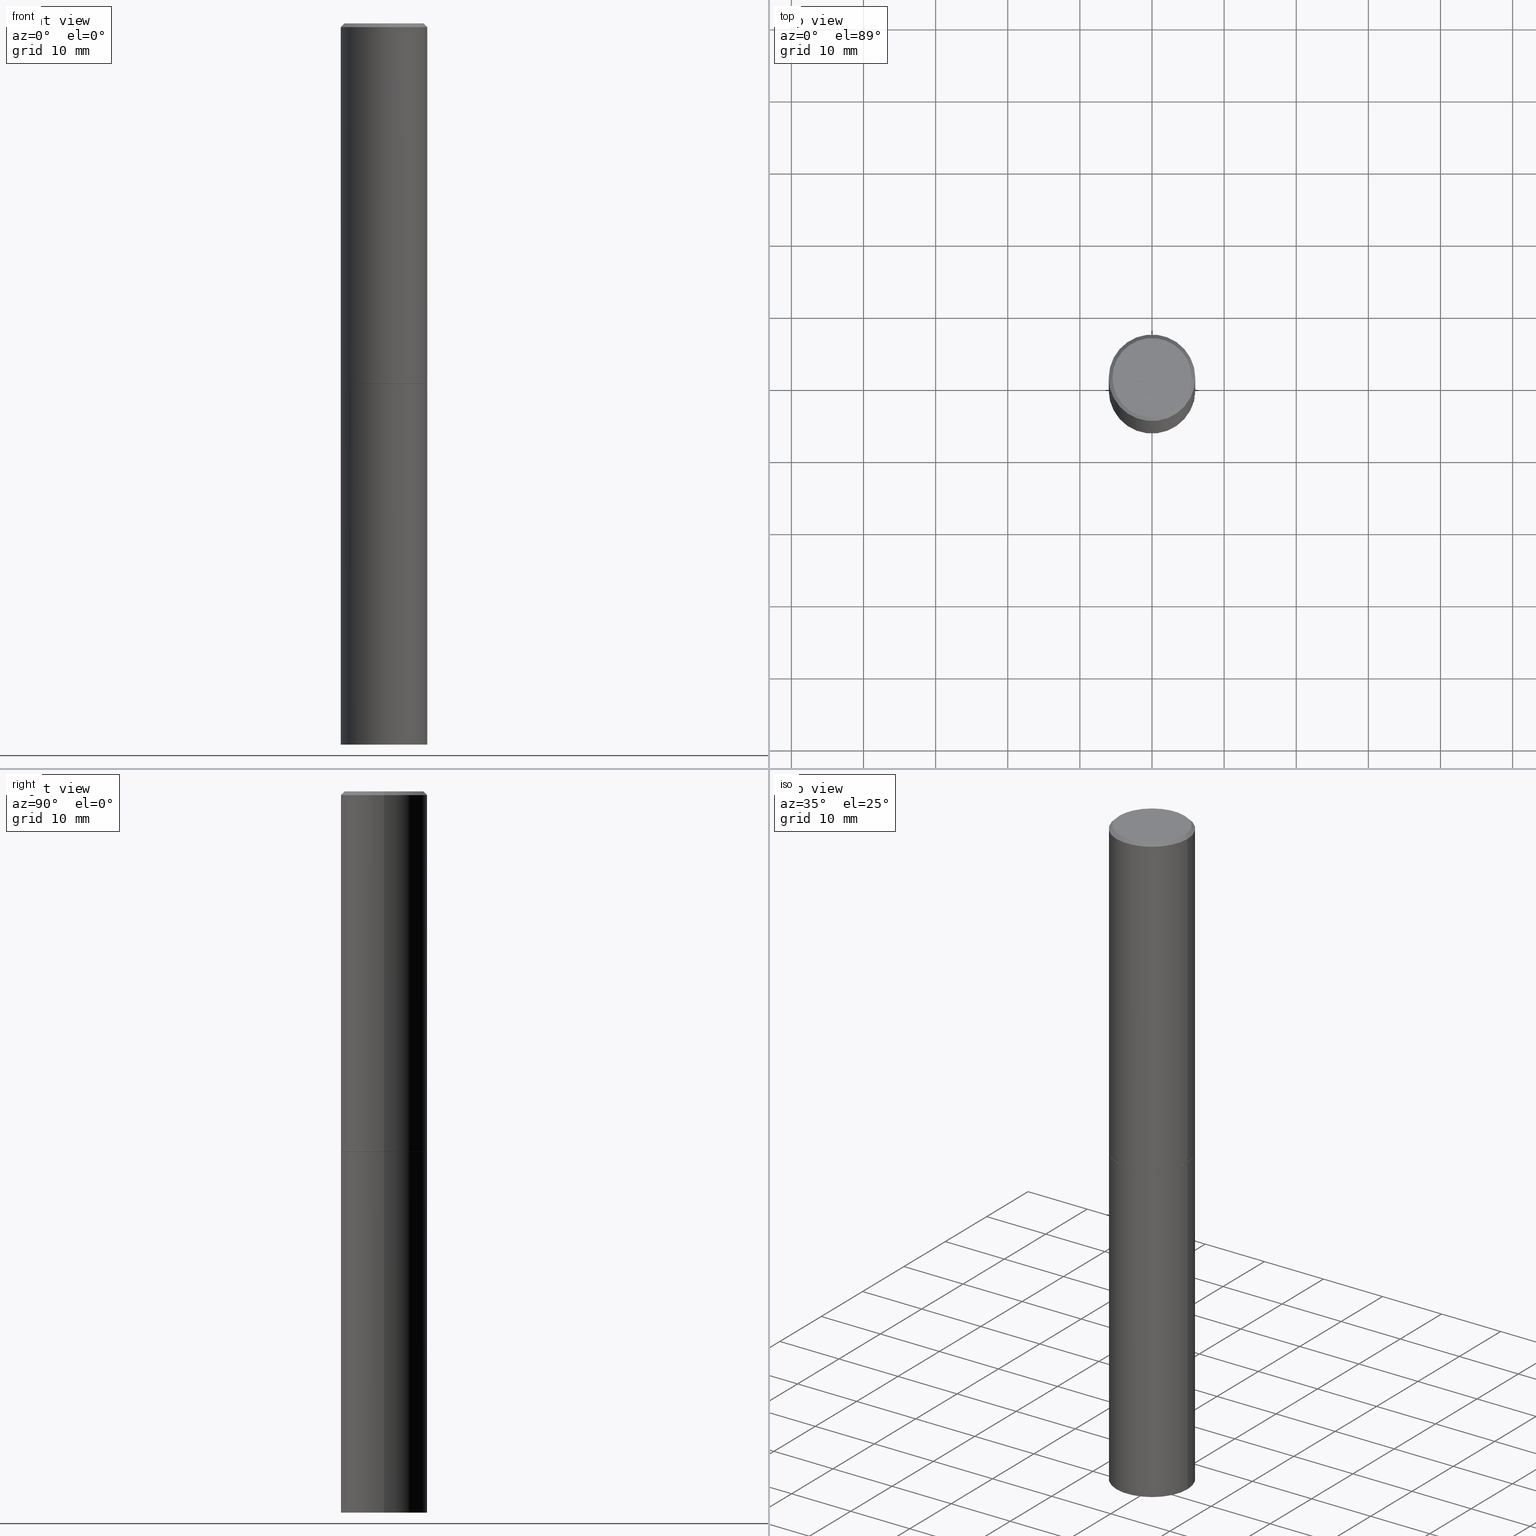
[diagram: canonical four-view strip — front | top / right | iso, engineering-drawing reading convention]
A machine part, canonical four-view strip (front | top / right | iso — engineering-drawing reading convention). The complete STEP part file that produces these views, byte-faithful:
ISO-10303-21;
HEADER;
FILE_DESCRIPTION (( 'STEP AP203' ),
    '1' );
FILE_NAME ('42617.STEP',
    '2024-02-28T03:28:32',
    ( '' ),
    ( '' ),
    'SwSTEP 2.0',
    'SolidWorks 2023',
    '' );
FILE_SCHEMA (( 'CONFIG_CONTROL_DESIGN' ));
ENDSEC;

DATA;
#1 = SHAPE_DEFINITION_REPRESENTATION ( #141, #121 ) ;
#2 = DIRECTION ( 'NONE',  ( -2.445468806185136597E-29, 3.491481338843145583E-15, 1.000000000000000000 ) ) ;
#3 = CIRCLE ( 'NONE', #58, 0.2361999999999999933 ) ;
#4 = AXIS2_PLACEMENT_3D ( 'NONE', #34, #172, #227 ) ;
#5 = DIRECTION ( 'NONE',  ( 0.7071067811865465735, -7.319954787623252890E-15, -0.7071067811865484609 ) ) ;
#6 = CARTESIAN_POINT ( 'NONE',  ( 1.509716530915769140E-15, 0.2161999999999997535, -7.527240092128371176E-16 ) ) ;
#7 = CALENDAR_DATE ( 2024, 27, 2 ) ;
#8 = CARTESIAN_POINT ( 'NONE',  ( 4.811459876169255671E-29, -6.869489534173887122E-15, -1.967499999999999805 ) ) ;
#9 = PLANE ( 'NONE',  #249 ) ;
#10 = APPROVAL_PERSON_ORGANIZATION ( #32, #354, #349 ) ;
#11 = MANIFOLD_SOLID_BREP ( 'Body-Move/Copy2[1]', #184 ) ;
#12 = ORIENTED_EDGE ( 'NONE', *, *, #353, .T. ) ;
#13 = ORIENTED_EDGE ( 'NONE', *, *, #46, .F. ) ;
#14 = CONICAL_SURFACE ( 'NONE', #92, 0.2351999999999999924, 0.7853981633974141952 ) ;
#15 = ORIENTED_EDGE ( 'NONE', *, *, #127, .F. ) ;
#16 = SECURITY_CLASSIFICATION ( '', '', #310 ) ;
#17 = EDGE_LOOP ( 'NONE', ( #169, #329 ) ) ;
#18 = CARTESIAN_POINT ( 'NONE',  ( 0.2161999999999997535, -1.586759460484350410E-15, 4.268512490111238857E-18 ) ) ;
#19 = CC_DESIGN_PERSON_AND_ORGANIZATION_ASSIGNMENT ( #256, #236, ( #265 ) ) ;
#20 = CARTESIAN_POINT ( 'NONE',  ( 0.2361999999999998823, -1.649375784469495539E-15, 1.151752954442999528E-29 ) ) ;
#21 = ORIENTED_EDGE ( 'NONE', *, *, #335, .F. ) ;
#22 = ORIENTED_EDGE ( 'NONE', *, *, #304, .T. ) ;
#23 = AXIS2_PLACEMENT_3D ( 'NONE', #80, #278, #137 ) ;
#24 = CALENDAR_DATE ( 2024, 27, 2 ) ;
#25 = APPROVAL_STATUS ( 'not_yet_approved' ) ;
#26 = CARTESIAN_POINT ( 'NONE',  ( 0.000000000000000000, 0.000000000000000000, 0.000000000000000000 ) ) ;
#27 = VERTEX_POINT ( 'NONE', #197 ) ;
#28 = CIRCLE ( 'NONE', #38, 0.2361999999999999933 ) ;
#29 = APPROVAL_DATE_TIME ( #170, #287 ) ;
#30 = DIRECTION ( 'NONE',  ( -2.445468806185136597E-29, 3.491481338843145583E-15, 1.000000000000000000 ) ) ;
#31 = VERTEX_POINT ( 'NONE', #123 ) ;
#32 = PERSON_AND_ORGANIZATION ( #252, #93 ) ;
#33 = UNCERTAINTY_MEASURE_WITH_UNIT (LENGTH_MEASURE( 1.000000000000000082E-05 ), #325, 'distance_accuracy_value', 'NONE');
#34 = CARTESIAN_POINT ( 'NONE',  ( -1.043851414335219820E-46, 1.490343170380447200E-32, 4.268512490100411279E-18 ) ) ;
#35 = AXIS2_PLACEMENT_3D ( 'NONE', #112, #2, #309 ) ;
#36 = DIRECTION ( 'NONE',  ( 1.000000000000000000, -6.982962677686266711E-15, 0.000000000000000000 ) ) ;
#37 = DIRECTION ( 'NONE',  ( 1.000000000000000000, -6.982962677686266711E-15, 4.876176775795936353E-29 ) ) ;
#38 = AXIS2_PLACEMENT_3D ( 'NONE', #105, #308, #55 ) ;
#39 = LOCAL_TIME ( 22, 28, 32.00000000000000000, #266 ) ;
#40 = DIRECTION ( 'NONE',  ( 1.000000000000000000, -6.982962677686265133E-15, 0.000000000000000000 ) ) ;
#41 = LINE ( 'NONE', #259, #50 ) ;
#42 = AXIS2_PLACEMENT_3D ( 'NONE', #345, #312, #63 ) ;
#43 = CIRCLE ( 'NONE', #348, 0.2161999999999997535 ) ;
#44 = CARTESIAN_POINT ( 'NONE',  ( 0.2351999999999999924, -8.515373837304542218E-15, -1.968499999999999694 ) ) ;
#45 = VERTEX_POINT ( 'NONE', #280 ) ;
#46 = EDGE_CURVE ( 'NONE', #215, #230, #311, .T. ) ;
#47 = APPLICATION_PROTOCOL_DEFINITION ( 'international standard', 'config_control_design', 1994, #358 ) ;
#48 = LINE ( 'NONE', #128, #254 ) ;
#49 = CARTESIAN_POINT ( 'NONE',  ( 0.000000000000000000, 0.000000000000000000, 0.000000000000000000 ) ) ;
#50 = VECTOR ( 'NONE', #207, 39.37007874015748143 ) ;
#51 = ORIENTED_EDGE ( 'NONE', *, *, #350, .F. ) ;
#52 = FACE_OUTER_BOUND ( 'NONE', #288, .T. ) ;
#53 = ORIENTED_EDGE ( 'NONE', *, *, #276, .F. ) ;
#54 = DATE_TIME_ROLE ( 'creation_date' ) ;
#55 = DIRECTION ( 'NONE',  ( 1.000000000000000000, -6.982962677686265133E-15, 0.000000000000000000 ) ) ;
#56 = CARTESIAN_POINT ( 'NONE',  ( 4.813905344975440714E-29, -6.872981015512730918E-15, -1.968499999999999694 ) ) ;
#57 = ORIENTED_EDGE ( 'NONE', *, *, #221, .F. ) ;
#58 = AXIS2_PLACEMENT_3D ( 'NONE', #337, #193, #79 ) ;
#59 = APPROVAL_ROLE ( '' ) ;
#60 = CC_DESIGN_SECURITY_CLASSIFICATION ( #16, ( #282 ) ) ;
#61 = EDGE_CURVE ( 'NONE', #342, #45, #65, .T. ) ;
#62 = PERSON_AND_ORGANIZATION ( #252, #93 ) ;
#63 = DIRECTION ( 'NONE',  ( -1.000000000000000000, 6.982962677686266711E-15, 0.000000000000000000 ) ) ;
#64 = CC_DESIGN_PERSON_AND_ORGANIZATION_ASSIGNMENT ( #62, #339, ( #16 ) ) ;
#65 = LINE ( 'NONE', #91, #66 ) ;
#66 = VECTOR ( 'NONE', #174, 39.37007874015748143 ) ;
#67 = CC_DESIGN_DATE_AND_TIME_ASSIGNMENT ( #133, #54, ( #235 ) ) ;
#68 = CARTESIAN_POINT ( 'NONE',  ( 0.000000000000000000, 0.000000000000000000, 0.000000000000000000 ) ) ;
#69 = VERTEX_POINT ( 'NONE', #314 ) ;
#70 = PLANE ( 'NONE',  #108 ) ;
#71 = AXIS2_PLACEMENT_3D ( 'NONE', #271, #274, #129 ) ;
#72 = FACE_OUTER_BOUND ( 'NONE', #17, .T. ) ;
#73 = PERSON_AND_ORGANIZATION ( #252, #93 ) ;
#74 =( NAMED_UNIT ( * ) PLANE_ANGLE_UNIT ( ) SI_UNIT ( $, .RADIAN. ) );
#75 = DIRECTION ( 'NONE',  ( -2.445468806185136877E-29, 3.491481338843145188E-15, 1.000000000000000000 ) ) ;
#76 = AXIS2_PLACEMENT_3D ( 'NONE', #8, #113, #343 ) ;
#77 = CARTESIAN_POINT ( 'NONE',  ( -0.2361999999999999933, -1.791357638610017633E-15, -1.967499999999999805 ) ) ;
#78 = DIRECTION ( 'NONE',  ( 1.000000000000000000, -6.982962677686266711E-15, 4.876176775795936353E-29 ) ) ;
#79 = DIRECTION ( 'NONE',  ( 1.000000000000000000, -6.982962677686265133E-15, 0.000000000000000000 ) ) ;
#80 = CARTESIAN_POINT ( 'NONE',  ( 4.890937612370292426E-31, -6.982962677686317493E-17, -0.02000000000000007674 ) ) ;
#81 = AXIS2_PLACEMENT_3D ( 'NONE', #201, #189, #36 ) ;
#82 = AXIS2_PLACEMENT_3D ( 'NONE', #157, #336, #291 ) ;
#83 = ADVANCED_FACE ( 'NONE', ( #286 ), #229, .F. ) ;
#84 = DIRECTION ( 'NONE',  ( -0.7071067811865232589, 7.493145998870265808E-15, 0.7071067811865715536 ) ) ;
#85 = ORIENTED_EDGE ( 'NONE', *, *, #161, .T. ) ;
#86 = DIRECTION ( 'NONE',  ( 1.000000000000000000, -6.982962677686268288E-15, 0.000000000000000000 ) ) ;
#87 = COORDINATED_UNIVERSAL_TIME_OFFSET ( 5, 0, .BEHIND. ) ;
#88 = CC_DESIGN_PERSON_AND_ORGANIZATION_ASSIGNMENT ( #73, #296, ( #235 ) ) ;
#89 = COORDINATED_UNIVERSAL_TIME_OFFSET ( 5, 0, .BEHIND. ) ;
#90 = EDGE_LOOP ( 'NONE', ( #347, #279, #305, #272 ) ) ;
#91 = CARTESIAN_POINT ( 'NONE',  ( -0.2361999999999998823, 1.678301941865355803E-15, -1.161852468318208336E-29 ) ) ;
#92 = AXIS2_PLACEMENT_3D ( 'NONE', #268, #134, #366 ) ;
#93 = ORGANIZATION ( 'UNSPECIFIED', 'UNSPECIFIED', '' ) ;
#94 = CARTESIAN_POINT ( 'NONE',  ( 1.649375784469544054E-15, 0.2361999999999931377, -1.968500000000000583 ) ) ;
#95 = CIRCLE ( 'NONE', #228, 0.2361999999999999933 ) ;
#96 = AXIS2_PLACEMENT_3D ( 'NONE', #56, #30, #241 ) ;
#97 = APPROVAL_DATE_TIME ( #126, #315 ) ;
#98 = CARTESIAN_POINT ( 'NONE',  ( 4.813905344975440714E-29, -6.872981015512730918E-15, -1.968499999999999694 ) ) ;
#99 = CARTESIAN_POINT ( 'NONE',  ( -1.043851414335219820E-46, 1.490343170380447200E-32, 4.268512490100411279E-18 ) ) ;
#100 = DIRECTION ( 'NONE',  ( 1.000000000000000000, -6.982962677686265922E-15, 4.876176775795935793E-29 ) ) ;
#101 = CIRCLE ( 'NONE', #35, 0.2361999999999999933 ) ;
#102 = PERSON_AND_ORGANIZATION ( #252, #93 ) ;
#103 = CYLINDRICAL_SURFACE ( 'NONE', #171, 0.2361999999999999933 ) ;
#104 = DIRECTION ( 'NONE',  ( -2.445468806185136597E-29, 3.491481338843145583E-15, 1.000000000000000000 ) ) ;
#105 = CARTESIAN_POINT ( 'NONE',  ( 4.813905344975440714E-29, -6.872981015512730918E-15, -1.968499999999999694 ) ) ;
#106 = CYLINDRICAL_SURFACE ( 'NONE', #321, 0.2361999999999998823 ) ;
#107 = CARTESIAN_POINT ( 'NONE',  ( 0.2361999999999997990, -1.690279253850497391E-15, -0.02000000000000007674 ) ) ;
#108 = AXIS2_PLACEMENT_3D ( 'NONE', #285, #355, #289 ) ;
#109 = ORIENTED_EDGE ( 'NONE', *, *, #147, .T. ) ;
#110 = AXIS2_PLACEMENT_3D ( 'NONE', #262, #160, #360 ) ;
#111 = ADVANCED_FACE ( 'NONE', ( #72 ), #70, .T. ) ;
#112 = CARTESIAN_POINT ( 'NONE',  ( 4.811459876169255671E-29, -6.869489534173887122E-15, -1.967499999999999805 ) ) ;
#113 = DIRECTION ( 'NONE',  ( -2.445468806185136597E-29, 3.491481338843145583E-15, 1.000000000000000000 ) ) ;
#114 = ORIENTED_EDGE ( 'NONE', *, *, #147, .F. ) ;
#115 = ADVANCED_FACE ( 'NONE', ( #322 ), #255, .T. ) ;
#116 = PERSON_AND_ORGANIZATION ( #252, #93 ) ;
#117 = FACE_OUTER_BOUND ( 'NONE', #90, .T. ) ;
#118 = ORIENTED_EDGE ( 'NONE', *, *, #232, .T. ) ;
#119 = CIRCLE ( 'NONE', #4, 0.2161999999999997535 ) ;
#120 = APPROVAL_PERSON_ORGANIZATION ( #275, #287, #59 ) ;
#121 = ADVANCED_BREP_SHAPE_REPRESENTATION ( '42617', ( #11, #130, #110 ), #179 ) ;
#122 = ADVANCED_FACE ( 'NONE', ( #150 ), #356, .F. ) ;
#123 = CARTESIAN_POINT ( 'NONE',  ( 0.2351999999999999924, -8.515373837304542218E-15, -1.968499999999999694 ) ) ;
#124 = ADVANCED_FACE ( 'NONE', ( #361 ), #106, .T. ) ;
#125 = ORIENTED_EDGE ( 'NONE', *, *, #221, .T. ) ;
#126 = DATE_AND_TIME ( #190, #151 ) ;
#127 = EDGE_CURVE ( 'NONE', #31, #27, #162, .T. ) ;
#128 = CARTESIAN_POINT ( 'NONE',  ( 0.2361999999999999933, -1.649375784469496131E-15, 1.151752954443000088E-29 ) ) ;
#129 = DIRECTION ( 'NONE',  ( -1.000000000000000000, 6.982962677686266711E-15, 0.000000000000000000 ) ) ;
#130 = MANIFOLD_SOLID_BREP ( 'Body-Move/Copy2[2]', #216 ) ;
#131 = ORIENTED_EDGE ( 'NONE', *, *, #210, .F. ) ;
#132 = CC_DESIGN_APPROVAL ( #287, ( #282 ) ) ;
#133 = DATE_AND_TIME ( #24, #39 ) ;
#134 = DIRECTION ( 'NONE',  ( -2.445468806185136597E-29, 3.491481338843145583E-15, 1.000000000000000000 ) ) ;
#135 = LINE ( 'NONE', #107, #178 ) ;
#136 = COORDINATED_UNIVERSAL_TIME_OFFSET ( 5, 0, .BEHIND. ) ;
#137 = DIRECTION ( 'NONE',  ( 1.000000000000000000, -6.982962677686266711E-15, 0.000000000000000000 ) ) ;
#138 = VERTEX_POINT ( 'NONE', #299 ) ;
#139 = CARTESIAN_POINT ( 'NONE',  ( -0.2361999999999999933, 1.678301941865356591E-15, -1.161852468318208757E-29 ) ) ;
#140 = ADVANCED_FACE ( 'NONE', ( #52 ), #103, .T. ) ;
#141 = PRODUCT_DEFINITION_SHAPE ( 'NONE', 'NONE',  #235 ) ;
#142 = CONICAL_SURFACE ( 'NONE', #71, 0.2361999999999997990, 0.7853981633974469467 ) ;
#143 = DATE_TIME_ROLE ( 'classification_date' ) ;
#144 = FACE_OUTER_BOUND ( 'NONE', #153, .T. ) ;
#145 = ADVANCED_FACE ( 'NONE', ( #166 ), #142, .T. ) ;
#146 = PERSON_AND_ORGANIZATION_ROLE ( 'creator' ) ;
#147 = EDGE_CURVE ( 'NONE', #138, #215, #333, .T. ) ;
#148 = CARTESIAN_POINT ( 'NONE',  ( 0.2361999999999999933, -8.518865318643383648E-15, -1.967499999999999805 ) ) ;
#149 = ADVANCED_FACE ( 'NONE', ( #243 ), #14, .T. ) ;
#150 = FACE_OUTER_BOUND ( 'NONE', #260, .T. ) ;
#151 = LOCAL_TIME ( 22, 28, 32.00000000000000000, #332 ) ;
#152 = EDGE_CURVE ( 'NONE', #230, #215, #28, .T. ) ;
#153 = EDGE_LOOP ( 'NONE', ( #202, #22 ) ) ;
#154 = LENGTH_MEASURE_WITH_UNIT ( LENGTH_MEASURE( 0.02539999999999999897 ), #188 );
#155 = AXIS2_PLACEMENT_3D ( 'NONE', #324, #341, #86 ) ;
#156 = PRODUCT_RELATED_PRODUCT_CATEGORY ( 'detail', '', ( #265 ) ) ;
#157 = CARTESIAN_POINT ( 'NONE',  ( 0.000000000000000000, 0.000000000000000000, 0.000000000000000000 ) ) ;
#158 = DIRECTION ( 'NONE',  ( -1.000000000000000000, 6.982962677686265922E-15, -4.876176775795935793E-29 ) ) ;
#159 = ADVANCED_FACE ( 'NONE', ( #144 ), #9, .F. ) ;
#160 = DIRECTION ( 'NONE',  ( 0.000000000000000000, 0.000000000000000000, 1.000000000000000000 ) ) ;
#161 = EDGE_CURVE ( 'NONE', #213, #342, #277, .T. ) ;
#162 = CIRCLE ( 'NONE', #316, 0.2351999999999999924 ) ;
#163 = ORIENTED_EDGE ( 'NONE', *, *, #335, .T. ) ;
#164 = DIRECTION ( 'NONE',  ( -2.445468806185136597E-29, 3.491481338843145583E-15, 1.000000000000000000 ) ) ;
#165 = DATE_AND_TIME ( #302, #317 ) ;
#166 = FACE_OUTER_BOUND ( 'NONE', #222, .T. ) ;
#167 = VERTEX_POINT ( 'NONE', #173 ) ;
#168 = ADVANCED_FACE ( 'NONE', ( #117 ), #258, .T. ) ;
#169 = ORIENTED_EDGE ( 'NONE', *, *, #204, .F. ) ;
#170 = DATE_AND_TIME ( #7, #362 ) ;
#171 = AXIS2_PLACEMENT_3D ( 'NONE', #26, #212, #78 ) ;
#172 = DIRECTION ( 'NONE',  ( -2.445468806185136597E-29, 3.491481338843145583E-15, 1.000000000000000000 ) ) ;
#173 = CARTESIAN_POINT ( 'NONE',  ( 0.2361999999999999933, -1.539533781549495994E-14, -3.937000000000000277 ) ) ;
#174 = DIRECTION ( 'NONE',  ( -2.445468806185136877E-29, 3.491481338843145188E-15, 1.000000000000000000 ) ) ;
#175 = DIRECTION ( 'NONE',  ( -2.438088387897960049E-29, 3.491481338843145188E-15, 1.000000000000000000 ) ) ;
#176 = ORIENTED_EDGE ( 'NONE', *, *, #127, .T. ) ;
#177 = CC_DESIGN_DATE_AND_TIME_ASSIGNMENT ( #307, #143, ( #16 ) ) ;
#178 = VECTOR ( 'NONE', #5, 39.37007874015748143 ) ;
#179 =( GEOMETRIC_REPRESENTATION_CONTEXT ( 3 ) GLOBAL_UNCERTAINTY_ASSIGNED_CONTEXT ( ( #33 ) ) GLOBAL_UNIT_ASSIGNED_CONTEXT ( ( #325, #74, #183 ) ) REPRESENTATION_CONTEXT ( 'NONE', 'WORKASPACE' ) );
#180 = ORIENTED_EDGE ( 'NONE', *, *, #152, .F. ) ;
#181 = LINE ( 'NONE', #20, #200 ) ;
#182 = CC_DESIGN_PERSON_AND_ORGANIZATION_ASSIGNMENT ( #223, #247, ( #282 ) ) ;
#183 =( NAMED_UNIT ( * ) SI_UNIT ( $, .STERADIAN. ) SOLID_ANGLE_UNIT ( ) );
#184 = CLOSED_SHELL ( 'NONE', ( #140, #111, #122, #115 ) ) ;
#185 = CC_DESIGN_APPROVAL ( #315, ( #235 ) ) ;
#186 = DIMENSIONAL_EXPONENTS ( 1.000000000000000000, 0.000000000000000000, 0.000000000000000000, 0.000000000000000000, 0.000000000000000000, 0.000000000000000000, 0.000000000000000000 ) ;
#187 = EDGE_CURVE ( 'NONE', #69, #330, #119, .T. ) ;
#188 =( LENGTH_UNIT ( ) NAMED_UNIT ( * ) SI_UNIT ( $, .METRE. ) );
#189 = DIRECTION ( 'NONE',  ( -2.445468806185136597E-29, 3.491481338843145583E-15, 1.000000000000000000 ) ) ;
#190 = CALENDAR_DATE ( 2024, 27, 2 ) ;
#191 = ORIENTED_EDGE ( 'NONE', *, *, #61, .F. ) ;
#192 = CIRCLE ( 'NONE', #81, 0.2361999999999997990 ) ;
#193 = DIRECTION ( 'NONE',  ( -2.445468806185136597E-29, 3.491481338843145583E-15, 1.000000000000000000 ) ) ;
#194 = FACE_OUTER_BOUND ( 'NONE', #365, .T. ) ;
#195 = CALENDAR_DATE ( 2024, 27, 2 ) ;
#196 = DIRECTION ( 'NONE',  ( 2.438088387897960049E-29, -3.491481338843145188E-15, -1.000000000000000000 ) ) ;
#197 = CARTESIAN_POINT ( 'NONE',  ( -0.2351999999999999924, -5.196486046656753130E-15, -1.968499999999999694 ) ) ;
#198 = EDGE_LOOP ( 'NONE', ( #85, #294, #131, #21 ) ) ;
#199 = APPROVAL_PERSON_ORGANIZATION ( #102, #315, #290 ) ;
#200 = VECTOR ( 'NONE', #293, 39.37007874015748143 ) ;
#201 = CARTESIAN_POINT ( 'NONE',  ( 4.890937612370292426E-31, -6.982962677686317493E-17, -0.02000000000000007674 ) ) ;
#202 = ORIENTED_EDGE ( 'NONE', *, *, #187, .T. ) ;
#203 = DIRECTION ( 'NONE',  ( 2.438088387897960049E-29, -3.491481338843145188E-15, -1.000000000000000000 ) ) ;
#204 = EDGE_CURVE ( 'NONE', #167, #138, #95, .T. ) ;
#205 = CARTESIAN_POINT ( 'NONE',  ( -0.2361999999999999933, -8.631169581403741167E-15, -1.968499999999999694 ) ) ;
#206 = LINE ( 'NONE', #44, #269 ) ;
#207 = DIRECTION ( 'NONE',  ( -0.7071067811865465735, 2.468850131082246805E-15, -0.7071067811865484609 ) ) ;
#208 = CIRCLE ( 'NONE', #23, 0.2361999999999997990 ) ;
#209 = CARTESIAN_POINT ( 'NONE',  ( 4.813905344975440714E-29, -6.872981015512730918E-15, -1.968499999999999694 ) ) ;
#210 = EDGE_CURVE ( 'NONE', #246, #45, #192, .T. ) ;
#211 = APPROVAL_STATUS ( 'not_yet_approved' ) ;
#212 = DIRECTION ( 'NONE',  ( -2.445468806185136597E-29, 3.491481338843145583E-15, 1.000000000000000000 ) ) ;
#213 = VERTEX_POINT ( 'NONE', #148 ) ;
#214 = DIRECTION ( 'NONE',  ( -2.445468806185136877E-29, 3.491481338843145188E-15, 1.000000000000000000 ) ) ;
#215 = VERTEX_POINT ( 'NONE', #205 ) ;
#216 = CLOSED_SHELL ( 'NONE', ( #297, #124, #145, #168, #300, #149, #83, #159 ) ) ;
#217 = LINE ( 'NONE', #338, #233 ) ;
#218 = APPROVAL_DATE_TIME ( #165, #354 ) ;
#219 = ORIENTED_EDGE ( 'NONE', *, *, #283, .F. ) ;
#220 = APPROVAL_STATUS ( 'not_yet_approved' ) ;
#221 = EDGE_CURVE ( 'NONE', #27, #31, #346, .T. ) ;
#222 = EDGE_LOOP ( 'NONE', ( #334, #245, #240, #226 ) ) ;
#223 = PERSON_AND_ORGANIZATION ( #252, #93 ) ;
#224 = AXIS2_PLACEMENT_3D ( 'NONE', #68, #284, #37 ) ;
#225 = CARTESIAN_POINT ( 'NONE',  ( 4.813905344975440714E-29, -6.872981015512730918E-15, -1.968499999999999694 ) ) ;
#226 = ORIENTED_EDGE ( 'NONE', *, *, #320, .F. ) ;
#227 = DIRECTION ( 'NONE',  ( 1.000000000000000000, -6.982962677686267499E-15, 4.876217060660161280E-29 ) ) ;
#228 = AXIS2_PLACEMENT_3D ( 'NONE', #331, #295, #40 ) ;
#229 = PLANE ( 'NONE',  #357 ) ;
#230 = VERTEX_POINT ( 'NONE', #301 ) ;
#231 = ORIENTED_EDGE ( 'NONE', *, *, #350, .T. ) ;
#232 = EDGE_CURVE ( 'NONE', #138, #167, #3, .T. ) ;
#233 = VECTOR ( 'NONE', #84, 39.37007874015748854 ) ;
#234 = DIRECTION ( 'NONE',  ( 1.000000000000000000, -6.982962677686267499E-15, 4.876217060660161280E-29 ) ) ;
#235 = PRODUCT_DEFINITION ( 'UNKNOWN', '', #282, #270 ) ;
#236 = PERSON_AND_ORGANIZATION_ROLE ( 'design_owner' ) ;
#237 = AXIS2_PLACEMENT_3D ( 'NONE', #225, #313, #351 ) ;
#238 = ORIENTED_EDGE ( 'NONE', *, *, #161, .F. ) ;
#239 = ORIENTED_EDGE ( 'NONE', *, *, #283, .T. ) ;
#240 = ORIENTED_EDGE ( 'NONE', *, *, #210, .T. ) ;
#241 = DIRECTION ( 'NONE',  ( 1.000000000000000000, -6.982962677686268288E-15, 0.000000000000000000 ) ) ;
#242 = CC_DESIGN_PERSON_AND_ORGANIZATION_ASSIGNMENT ( #116, #146, ( #282 ) ) ;
#243 = FACE_OUTER_BOUND ( 'NONE', #364, .T. ) ;
#244 = AXIS2_PLACEMENT_3D ( 'NONE', #94, #203, #158 ) ;
#245 = ORIENTED_EDGE ( 'NONE', *, *, #253, .T. ) ;
#246 = VERTEX_POINT ( 'NONE', #298 ) ;
#247 = PERSON_AND_ORGANIZATION_ROLE ( 'design_supplier' ) ;
#248 = DIRECTION ( 'NONE',  ( -1.000000000000000000, 6.982962677686265922E-15, -4.876176775795935793E-29 ) ) ;
#249 = AXIS2_PLACEMENT_3D ( 'NONE', #6, #196, #248 ) ;
#250 = CC_DESIGN_APPROVAL ( #354, ( #16 ) ) ;
#251 = ORIENTED_EDGE ( 'NONE', *, *, #273, .F. ) ;
#252 = PERSON ( 'UNSPECIFIED', 'UNSPECIFIED', 'UNSPECIFIED', ('UNSPECIFIED'), ('UNSPECIFIED'), ('UNSPECIFIED') ) ;
#253 = EDGE_CURVE ( 'NONE', #330, #246, #135, .T. ) ;
#254 = VECTOR ( 'NONE', #214, 39.37007874015748143 ) ;
#255 = CYLINDRICAL_SURFACE ( 'NONE', #224, 0.2361999999999999933 ) ;
#256 = PERSON_AND_ORGANIZATION ( #252, #93 ) ;
#257 = EDGE_LOOP ( 'NONE', ( #191, #292, #163, #251 ) ) ;
#258 = CONICAL_SURFACE ( 'NONE', #42, 0.2361999999999997990, 0.7853981633974469467 ) ;
#259 = CARTESIAN_POINT ( 'NONE',  ( -0.2361999999999997990, 1.579546157692631649E-15, -0.02000000000000007674 ) ) ;
#260 = EDGE_LOOP ( 'NONE', ( #318, #306 ) ) ;
#261 = APPLICATION_CONTEXT ( 'configuration controlled 3d designs of mechanical parts and assemblies' ) ;
#262 = CARTESIAN_POINT ( 'NONE',  ( 0.000000000000000000, 0.000000000000000000, 0.000000000000000000 ) ) ;
#263 = ORIENTED_EDGE ( 'NONE', *, *, #204, .T. ) ;
#264 = ORIENTED_EDGE ( 'NONE', *, *, #353, .F. ) ;
#265 = PRODUCT ( '42617', '42617', '', ( #323 ) ) ;
#266 = COORDINATED_UNIVERSAL_TIME_OFFSET ( 5, 0, .BEHIND. ) ;
#267 = VECTOR ( 'NONE', #75, 39.37007874015748143 ) ;
#268 = CARTESIAN_POINT ( 'NONE',  ( 4.813905344975440714E-29, -6.872981015512730918E-15, -1.968499999999999694 ) ) ;
#269 = VECTOR ( 'NONE', #359, 39.37007874015748854 ) ;
#270 = DESIGN_CONTEXT ( 'detailed design', #261, 'design' ) ;
#271 = CARTESIAN_POINT ( 'NONE',  ( 4.890937612370292426E-31, -6.982962677686317493E-17, -0.02000000000000007674 ) ) ;
#272 = ORIENTED_EDGE ( 'NONE', *, *, #273, .T. ) ;
#273 = EDGE_CURVE ( 'NONE', #45, #246, #208, .T. ) ;
#274 = DIRECTION ( 'NONE',  ( 2.445468806185136597E-29, -3.491481338843145583E-15, -1.000000000000000000 ) ) ;
#275 = PERSON_AND_ORGANIZATION ( #252, #93 ) ;
#276 = EDGE_CURVE ( 'NONE', #342, #213, #101, .T. ) ;
#277 = CIRCLE ( 'NONE', #76, 0.2361999999999999933 ) ;
#278 = DIRECTION ( 'NONE',  ( -2.445468806185136597E-29, 3.491481338843145583E-15, 1.000000000000000000 ) ) ;
#279 = ORIENTED_EDGE ( 'NONE', *, *, #187, .F. ) ;
#280 = CARTESIAN_POINT ( 'NONE',  ( -0.2361999999999997990, 1.579546157692631649E-15, -0.02000000000000007674 ) ) ;
#281 = CONICAL_SURFACE ( 'NONE', #96, 0.2351999999999999924, 0.7853981633974141952 ) ;
#282 = PRODUCT_DEFINITION_FORMATION_WITH_SPECIFIED_SOURCE ( 'ANY', '', #265, .NOT_KNOWN. ) ;
#283 = EDGE_CURVE ( 'NONE', #27, #342, #217, .T. ) ;
#284 = DIRECTION ( 'NONE',  ( -2.445468806185136597E-29, 3.491481338843145583E-15, 1.000000000000000000 ) ) ;
#285 = CARTESIAN_POINT ( 'NONE',  ( 1.649375784469592175E-15, 0.2361999999999862265, -3.937000000000001165 ) ) ;
#286 = FACE_OUTER_BOUND ( 'NONE', #344, .T. ) ;
#287 = APPROVAL ( #220, 'UNSPECIFIED' ) ;
#288 = EDGE_LOOP ( 'NONE', ( #263, #109, #180, #264 ) ) ;
#289 = DIRECTION ( 'NONE',  ( -1.000000000000000000, 6.982962677686265922E-15, -4.876176775795935793E-29 ) ) ;
#290 = APPROVAL_ROLE ( '' ) ;
#291 = DIRECTION ( 'NONE',  ( 1.000000000000000000, -6.982962677686267499E-15, 4.876176775795936353E-29 ) ) ;
#292 = ORIENTED_EDGE ( 'NONE', *, *, #276, .T. ) ;
#293 = DIRECTION ( 'NONE',  ( -2.445468806185136877E-29, 3.491481338843145188E-15, 1.000000000000000000 ) ) ;
#294 = ORIENTED_EDGE ( 'NONE', *, *, #61, .T. ) ;
#295 = DIRECTION ( 'NONE',  ( -2.445468806185136597E-29, 3.491481338843145583E-15, 1.000000000000000000 ) ) ;
#296 = PERSON_AND_ORGANIZATION_ROLE ( 'creator' ) ;
#297 = ADVANCED_FACE ( 'NONE', ( #194 ), #281, .T. ) ;
#298 = CARTESIAN_POINT ( 'NONE',  ( 0.2361999999999997990, -1.690279253850497391E-15, -0.02000000000000007674 ) ) ;
#299 = CARTESIAN_POINT ( 'NONE',  ( -0.2361999999999999933, -8.631169581403741167E-15, -3.937000000000000277 ) ) ;
#300 = ADVANCED_FACE ( 'NONE', ( #319 ), #352, .T. ) ;
#301 = CARTESIAN_POINT ( 'NONE',  ( 0.2361999999999999933, -8.522356799982226655E-15, -1.968499999999999694 ) ) ;
#302 = CALENDAR_DATE ( 2024, 27, 2 ) ;
#303 = DIRECTION ( 'NONE',  ( -2.445468806185136597E-29, 3.491481338843145583E-15, 1.000000000000000000 ) ) ;
#304 = EDGE_CURVE ( 'NONE', #330, #69, #43, .T. ) ;
#305 = ORIENTED_EDGE ( 'NONE', *, *, #320, .T. ) ;
#306 = ORIENTED_EDGE ( 'NONE', *, *, #46, .T. ) ;
#307 = DATE_AND_TIME ( #195, #327 ) ;
#308 = DIRECTION ( 'NONE',  ( -2.445468806185136597E-29, 3.491481338843145583E-15, 1.000000000000000000 ) ) ;
#309 = DIRECTION ( 'NONE',  ( 1.000000000000000000, -6.982962677686269077E-15, 0.000000000000000000 ) ) ;
#310 = SECURITY_CLASSIFICATION_LEVEL ( 'unclassified' ) ;
#311 = CIRCLE ( 'NONE', #237, 0.2361999999999999933 ) ;
#312 = DIRECTION ( 'NONE',  ( 2.445468806185136597E-29, -3.491481338843145583E-15, -1.000000000000000000 ) ) ;
#313 = DIRECTION ( 'NONE',  ( -2.445468806185136597E-29, 3.491481338843145583E-15, 1.000000000000000000 ) ) ;
#314 = CARTESIAN_POINT ( 'NONE',  ( -0.2161999999999997535, 1.544631344304200395E-15, 4.268512490089730842E-18 ) ) ;
#315 = APPROVAL ( #211, 'UNSPECIFIED' ) ;
#316 = AXIS2_PLACEMENT_3D ( 'NONE', #209, #164, #328 ) ;
#317 = LOCAL_TIME ( 22, 28, 32.00000000000000000, #89 ) ;
#318 = ORIENTED_EDGE ( 'NONE', *, *, #152, .T. ) ;
#319 = FACE_OUTER_BOUND ( 'NONE', #257, .T. ) ;
#320 = EDGE_CURVE ( 'NONE', #69, #45, #41, .T. ) ;
#321 = AXIS2_PLACEMENT_3D ( 'NONE', #49, #303, #326 ) ;
#322 = FACE_OUTER_BOUND ( 'NONE', #340, .T. ) ;
#323 = MECHANICAL_CONTEXT ( 'NONE', #358, 'mechanical' ) ;
#324 = CARTESIAN_POINT ( 'NONE',  ( 4.813905344975440714E-29, -6.872981015512730918E-15, -1.968499999999999694 ) ) ;
#325 =( CONVERSION_BASED_UNIT ( 'INCH', #154 ) LENGTH_UNIT ( ) NAMED_UNIT ( #186 ) );
#326 = DIRECTION ( 'NONE',  ( 1.000000000000000000, -6.982962677686267499E-15, 4.876176775795936353E-29 ) ) ;
#327 = LOCAL_TIME ( 22, 28, 32.00000000000000000, #136 ) ;
#328 = DIRECTION ( 'NONE',  ( 1.000000000000000000, -6.982962677686268288E-15, 0.000000000000000000 ) ) ;
#329 = ORIENTED_EDGE ( 'NONE', *, *, #232, .F. ) ;
#330 = VERTEX_POINT ( 'NONE', #18 ) ;
#331 = CARTESIAN_POINT ( 'NONE',  ( 9.627810689950883669E-29, -1.374596203102546341E-14, -3.937000000000000277 ) ) ;
#332 = COORDINATED_UNIVERSAL_TIME_OFFSET ( 5, 0, .BEHIND. ) ;
#333 = LINE ( 'NONE', #139, #267 ) ;
#334 = ORIENTED_EDGE ( 'NONE', *, *, #304, .F. ) ;
#335 = EDGE_CURVE ( 'NONE', #213, #246, #181, .T. ) ;
#336 = DIRECTION ( 'NONE',  ( -2.445468806185136597E-29, 3.491481338843145583E-15, 1.000000000000000000 ) ) ;
#337 = CARTESIAN_POINT ( 'NONE',  ( 9.627810689950883669E-29, -1.374596203102546341E-14, -3.937000000000000277 ) ) ;
#338 = CARTESIAN_POINT ( 'NONE',  ( -0.2351999999999999924, -5.201784501004975532E-15, -1.968499999999999694 ) ) ;
#339 = PERSON_AND_ORGANIZATION_ROLE ( 'classification_officer' ) ;
#340 = EDGE_LOOP ( 'NONE', ( #114, #118, #12, #13 ) ) ;
#341 = DIRECTION ( 'NONE',  ( -2.445468806185136597E-29, 3.491481338843145583E-15, 1.000000000000000000 ) ) ;
#342 = VERTEX_POINT ( 'NONE', #77 ) ;
#343 = DIRECTION ( 'NONE',  ( 1.000000000000000000, -6.982962677686269077E-15, 0.000000000000000000 ) ) ;
#344 = EDGE_LOOP ( 'NONE', ( #15, #57 ) ) ;
#345 = CARTESIAN_POINT ( 'NONE',  ( 4.890937612370292426E-31, -6.982962677686317493E-17, -0.02000000000000007674 ) ) ;
#346 = CIRCLE ( 'NONE', #155, 0.2351999999999999924 ) ;
#347 = ORIENTED_EDGE ( 'NONE', *, *, #253, .F. ) ;
#348 = AXIS2_PLACEMENT_3D ( 'NONE', #99, #104, #234 ) ;
#349 = APPROVAL_ROLE ( '' ) ;
#350 = EDGE_CURVE ( 'NONE', #31, #213, #206, .T. ) ;
#351 = DIRECTION ( 'NONE',  ( 1.000000000000000000, -6.982962677686265133E-15, 0.000000000000000000 ) ) ;
#352 = CYLINDRICAL_SURFACE ( 'NONE', #82, 0.2361999999999998823 ) ;
#353 = EDGE_CURVE ( 'NONE', #167, #230, #48, .T. ) ;
#354 = APPROVAL ( #25, 'UNSPECIFIED' ) ;
#355 = DIRECTION ( 'NONE',  ( 2.438088387897960049E-29, -3.491481338843145188E-15, -1.000000000000000000 ) ) ;
#356 = PLANE ( 'NONE',  #244 ) ;
#357 = AXIS2_PLACEMENT_3D ( 'NONE', #98, #175, #100 ) ;
#358 = APPLICATION_CONTEXT ( 'configuration controlled 3d designs of mechanical parts and assemblies' ) ;
#359 = DIRECTION ( 'NONE',  ( 0.7071067811865232589, -2.468850131082003836E-15, 0.7071067811865715536 ) ) ;
#360 = DIRECTION ( 'NONE',  ( 1.000000000000000000, 0.000000000000000000, 0.000000000000000000 ) ) ;
#361 = FACE_OUTER_BOUND ( 'NONE', #198, .T. ) ;
#362 = LOCAL_TIME ( 22, 28, 32.00000000000000000, #87 ) ;
#363 = APPLICATION_PROTOCOL_DEFINITION ( 'international standard', 'config_control_design', 1994, #261 ) ;
#364 = EDGE_LOOP ( 'NONE', ( #219, #125, #231, #53 ) ) ;
#365 = EDGE_LOOP ( 'NONE', ( #176, #239, #238, #51 ) ) ;
#366 = DIRECTION ( 'NONE',  ( 1.000000000000000000, -6.982962677686268288E-15, 0.000000000000000000 ) ) ;
ENDSEC;
END-ISO-10303-21;
